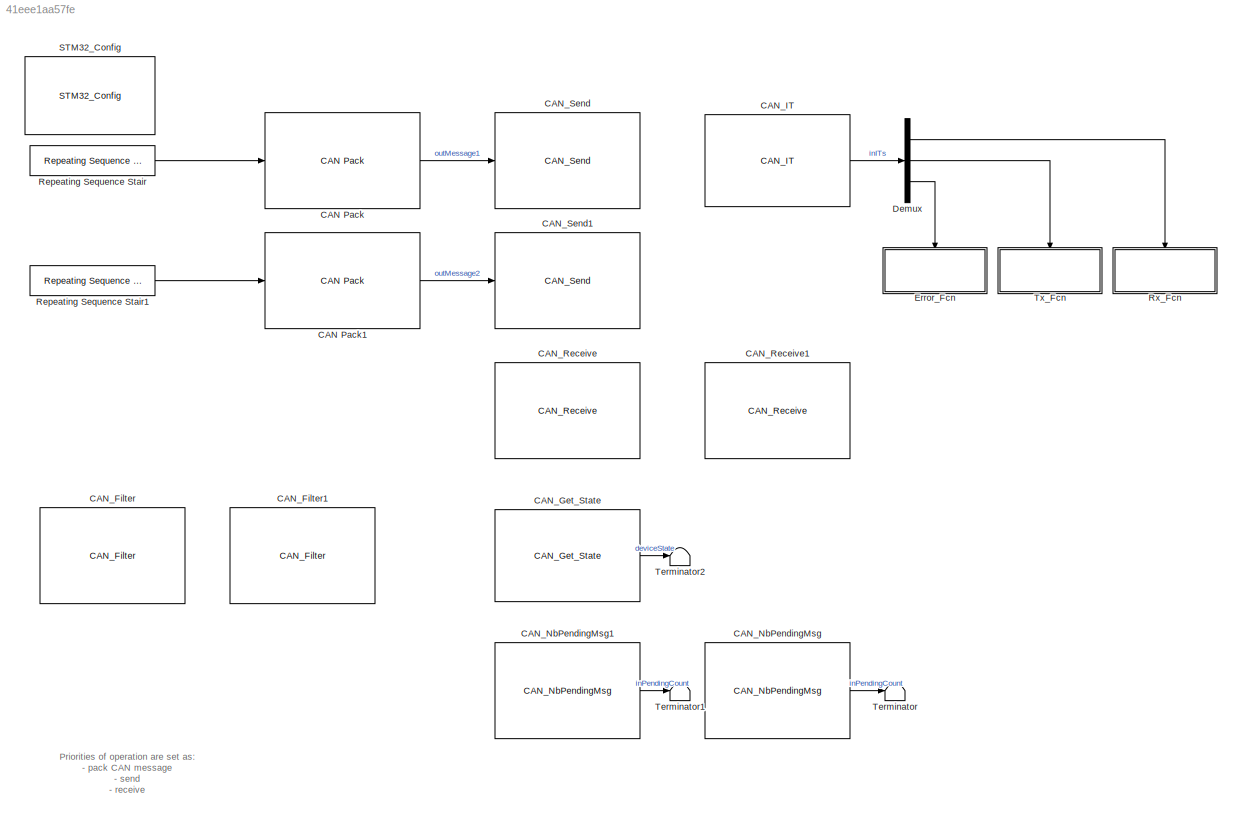
MODEL slx_41eee1aa57fe
KIND model
CONFIG AbsTol = auto
CONFIG EnableMultiTasking = on
CONFIG FixedStep = 1
CONFIG MaxStep = auto
CONFIG MinStep = auto
CONFIG RelTol = 1e-3
CONFIG SampleTimeConstraint = Unconstrained
CONFIG Solver = FixedStepDiscrete
CONFIG SolverName = FixedStepDiscrete
CONFIG StartTime = 0.0
CONFIG StopTime = 10.0
BLOCK [Reference] CAN Pack  REF=canmsglib/CAN Pack
  AttributesFormatString = Priority=%<Priority>
  Ports = [1, 1]
  Priority = 1
  SourceBlock = canmsglib/CAN Pack
  SourceProductBaseCode = XP
  SourceProductName = Simulink Real-Time
  SourceType = CAN Pack
BLOCK [Reference] CAN Pack1  REF=canmsglib/CAN Pack
  AttributesFormatString = Priority=%<Priority>
  Ports = [1, 1]
  Priority = 1
  SourceBlock = canmsglib/CAN Pack
  SourceProductBaseCode = XP
  SourceProductName = Simulink Real-Time
  SourceType = CAN Pack
BLOCK [Reference] CAN_Filter  REF=CAN_Lib/CAN_Filter
  Ports = []
  SourceBlock = CAN_Lib/CAN_Filter
  SourceProductName = Target Support Package - STM32 Adapter
  SourceType = CAN_Filter
BLOCK [Reference] CAN_Filter1  REF=CAN_Lib/CAN_Filter
  Ports = []
  SourceBlock = CAN_Lib/CAN_Filter
  SourceProductName = Target Support Package - STM32 Adapter
  SourceType = CAN_Filter
BLOCK [Reference] CAN_Get_State  REF=CAN_Lib/CAN_Get_State
  Ports = [0, 1]
  SourceBlock = CAN_Lib/CAN_Get_State
  SourceProductName = Target Support Package - STM32 Adapter
  SourceType = CAN_Get_State
BLOCK [Reference] CAN_IT  REF=CAN_Lib/CAN_IT
  Ports = [0, 1]
  SourceBlock = CAN_Lib/CAN_IT
  SourceProductName = Target Support Package - STM32 Adapter
  SourceType = CAN_IT
BLOCK [Reference] CAN_NbPendingMsg  REF=CAN_Lib/CAN_NbPendingMsg
  Ports = [0, 1]
  SourceBlock = CAN_Lib/CAN_NbPendingMsg
  SourceProductName = Target Support Package - STM32 Adapter
  SourceType = CAN_NbPendingMsg
BLOCK [Reference] CAN_NbPendingMsg1  REF=CAN_Lib/CAN_NbPendingMsg
  Ports = [0, 1]
  SourceBlock = CAN_Lib/CAN_NbPendingMsg
  SourceProductName = Target Support Package - STM32 Adapter
  SourceType = CAN_NbPendingMsg
BLOCK [Reference] CAN_Receive  REF=CAN_Lib/CAN_Receive
  AttributesFormatString = Priority=%<Priority>
  Ports = []
  Priority = 3
  SourceBlock = CAN_Lib/CAN_Receive
  SourceProductName = Target Support Package - STM32 Adapter
  SourceType = CAN_Receive
BLOCK [Reference] CAN_Receive1  REF=CAN_Lib/CAN_Receive
  AttributesFormatString = Priority=%<Priority>
  Ports = []
  Priority = 3
  SourceBlock = CAN_Lib/CAN_Receive
  SourceProductName = Target Support Package - STM32 Adapter
  SourceType = CAN_Receive
BLOCK [Reference] CAN_Send  REF=CAN_Lib/CAN_Send
  AttributesFormatString = Priority=%<Priority>
  Ports = [1]
  Priority = 2
  SourceBlock = CAN_Lib/CAN_Send
  SourceProductName = Target Support Package - STM32 Adapter
  SourceType = CAN_Send
BLOCK [Reference] CAN_Send1  REF=CAN_Lib/CAN_Send
  AttributesFormatString = Priority=%<Priority>
  Ports = [1]
  Priority = 2
  SourceBlock = CAN_Lib/CAN_Send
  SourceProductName = Target Support Package - STM32 Adapter
  SourceType = CAN_Send
BLOCK [Demux] Demux
  DisplayOption = bar
  Outputs = 3
  Ports = [1, 3]
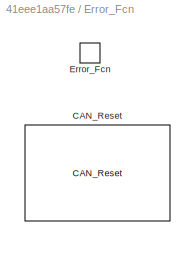
BLOCK [SubSystem] Error_Fcn
  Ports = [0, 0, 0, 1]
  RequestExecContextInheritance = off
  TreatAsAtomicUnit = on
BLOCK [Reference] Error_Fcn/CAN_Reset  REF=CAN_Lib/CAN_Reset
  Ports = []
  SourceBlock = CAN_Lib/CAN_Reset
  SourceProductName = Target Support Package - STM32 Adapter
  SourceType = CAN_Reset
BLOCK [TriggerPort] Error_Fcn/Error_Fcn
  Ports = []
  StatesWhenEnabling = held
  TriggerType = function-call
  VariantControl = Variant
BLOCK [Reference] Repeating Sequence Stair  REF=simulink/Sources/Repeating
Sequence
Stair
  Ports = [0, 1]
  SourceBlock = simulink/Sources/Repeating\nSequence\nStair
  SourceProductBaseCode = SL
  SourceProductName = Simulink
  SourceType = Repeating Sequence Stair
BLOCK [Reference] Repeating Sequence Stair1  REF=simulink/Sources/Repeating
Sequence
Stair
  Ports = [0, 1]
  SourceBlock = simulink/Sources/Repeating\nSequence\nStair
  SourceProductBaseCode = SL
  SourceProductName = Simulink
  SourceType = Repeating Sequence Stair
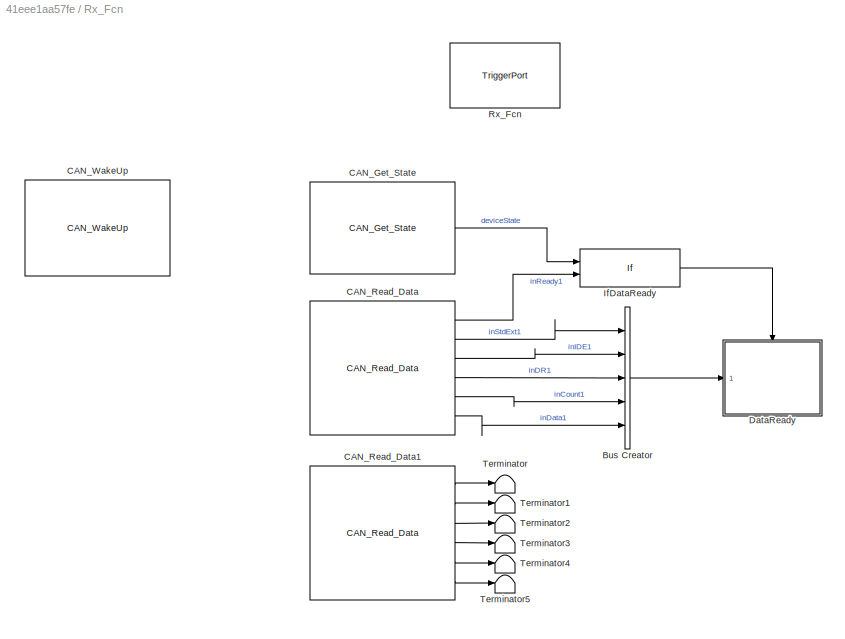
BLOCK [SubSystem] Rx_Fcn
  Ports = [0, 0, 0, 1]
  RequestExecContextInheritance = off
  TreatAsAtomicUnit = on
BLOCK [BusCreator] Rx_Fcn/Bus Creator
  DisplayOption = bar
  InheritFromInputs = on
  Inputs = 5
  Ports = [5, 1]
BLOCK [Reference] Rx_Fcn/CAN_Get_State  REF=CAN_Lib/CAN_Get_State
  Ports = [0, 1]
  SourceBlock = CAN_Lib/CAN_Get_State
  SourceProductName = Target Support Package - STM32 Adapter
  SourceType = CAN_Get_State
BLOCK [Reference] Rx_Fcn/CAN_Read_Data  REF=CAN_Lib/CAN_Read_Data
  Ports = [0, 6]
  SourceBlock = CAN_Lib/CAN_Read_Data
  SourceProductName = Target Support Package - STM32 Adapter
  SourceType = CAN_Read_Data
BLOCK [Reference] Rx_Fcn/CAN_Read_Data1  REF=CAN_Lib/CAN_Read_Data
  Ports = [0, 6]
  SourceBlock = CAN_Lib/CAN_Read_Data
  SourceProductName = Target Support Package - STM32 Adapter
  SourceType = CAN_Read_Data
BLOCK [Reference] Rx_Fcn/CAN_WakeUp  REF=CAN_Lib/CAN_WakeUp
  Ports = []
  SourceBlock = CAN_Lib/CAN_WakeUp
  SourceProductName = Target Support Package - STM32 Adapter
  SourceType = CAN_WakeUp
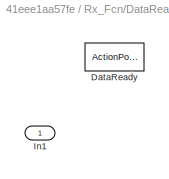
BLOCK [SubSystem] Rx_Fcn/DataReady
  Ports = [1, 0, 0, 0, 0, 0, 0, 1]
  RequestExecContextInheritance = off
  TreatAsAtomicUnit = on
BLOCK [ActionPort] Rx_Fcn/DataReady/DataReady
  ActionType = then
BLOCK [Inport] Rx_Fcn/DataReady/In1
  IconDisplay = Port number
BLOCK [If] Rx_Fcn/IfDataReady
  IfExpression = u1 == 1  & u2 >0
  NumInputs = 2
  Ports = [2, 1]
  ShowElse = off
BLOCK [TriggerPort] Rx_Fcn/Rx_Fcn
  Ports = []
  StatesWhenEnabling = held
  TriggerType = function-call
  VariantControl = Variant
BLOCK [Terminator] Rx_Fcn/Terminator
BLOCK [Terminator] Rx_Fcn/Terminator1
BLOCK [Terminator] Rx_Fcn/Terminator2
BLOCK [Terminator] Rx_Fcn/Terminator3
BLOCK [Terminator] Rx_Fcn/Terminator4
BLOCK [Terminator] Rx_Fcn/Terminator5
BLOCK [Reference] STM32_Config  REF=STM32_Config_Lib/STM32_Config
  Ports = []
  Priority = 0
  SourceBlock = STM32_Config_Lib/STM32_Config
  SourceProductName = Target Support Package - STM32 Adapter
  SourceType = STM32_Config
BLOCK [Terminator] Terminator
BLOCK [Terminator] Terminator1
BLOCK [Terminator] Terminator2
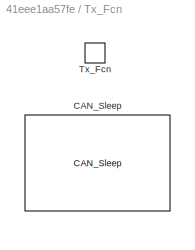
BLOCK [SubSystem] Tx_Fcn
  Ports = [0, 0, 0, 1]
  RequestExecContextInheritance = off
  TreatAsAtomicUnit = on
BLOCK [Reference] Tx_Fcn/CAN_Sleep  REF=CAN_Lib/CAN_Sleep
  Ports = []
  SourceBlock = CAN_Lib/CAN_Sleep
  SourceProductName = Target Support Package - STM32 Adapter
  SourceType = CAN_Sleep
BLOCK [TriggerPort] Tx_Fcn/Tx_Fcn
  Ports = []
  StatesWhenEnabling = held
  TriggerType = function-call
  VariantControl = Variant
ANNOTATION (root): Priorities of operation are set as: - pack CAN message - send - receive
LINE CAN Pack1:1 -> CAN_Send1:1
LINE CAN Pack:1 -> CAN_Send:1
LINE CAN_Get_State:1 -> Terminator2:1
LINE CAN_IT:1 -> Demux:1
LINE CAN_NbPendingMsg1:1 -> Terminator1:1
LINE CAN_NbPendingMsg:1 -> Terminator:1
LINE Demux:1 -> Rx_Fcn:trigger
LINE Demux:2 -> Tx_Fcn:trigger
LINE Demux:3 -> Error_Fcn:trigger
LINE Repeating Sequence Stair1:1 -> CAN Pack1:1
LINE Repeating Sequence Stair:1 -> CAN Pack:1
LINE Rx_Fcn/Bus Creator:1 -> Rx_Fcn/DataReady:1
LINE Rx_Fcn/CAN_Get_State:1 -> Rx_Fcn/IfDataReady:1
LINE Rx_Fcn/CAN_Read_Data1:1 -> Rx_Fcn/Terminator:1
LINE Rx_Fcn/CAN_Read_Data1:2 -> Rx_Fcn/Terminator1:1
LINE Rx_Fcn/CAN_Read_Data1:3 -> Rx_Fcn/Terminator2:1
LINE Rx_Fcn/CAN_Read_Data1:4 -> Rx_Fcn/Terminator3:1
LINE Rx_Fcn/CAN_Read_Data1:5 -> Rx_Fcn/Terminator4:1
LINE Rx_Fcn/CAN_Read_Data1:6 -> Rx_Fcn/Terminator5:1
LINE Rx_Fcn/CAN_Read_Data:1 -> Rx_Fcn/IfDataReady:2
LINE Rx_Fcn/CAN_Read_Data:2 -> Rx_Fcn/Bus Creator:1
LINE Rx_Fcn/CAN_Read_Data:3 -> Rx_Fcn/Bus Creator:2
LINE Rx_Fcn/CAN_Read_Data:4 -> Rx_Fcn/Bus Creator:3
LINE Rx_Fcn/CAN_Read_Data:5 -> Rx_Fcn/Bus Creator:4
LINE Rx_Fcn/CAN_Read_Data:6 -> Rx_Fcn/Bus Creator:5
LINE Rx_Fcn/IfDataReady:1 -> Rx_Fcn/DataReady:ifaction
